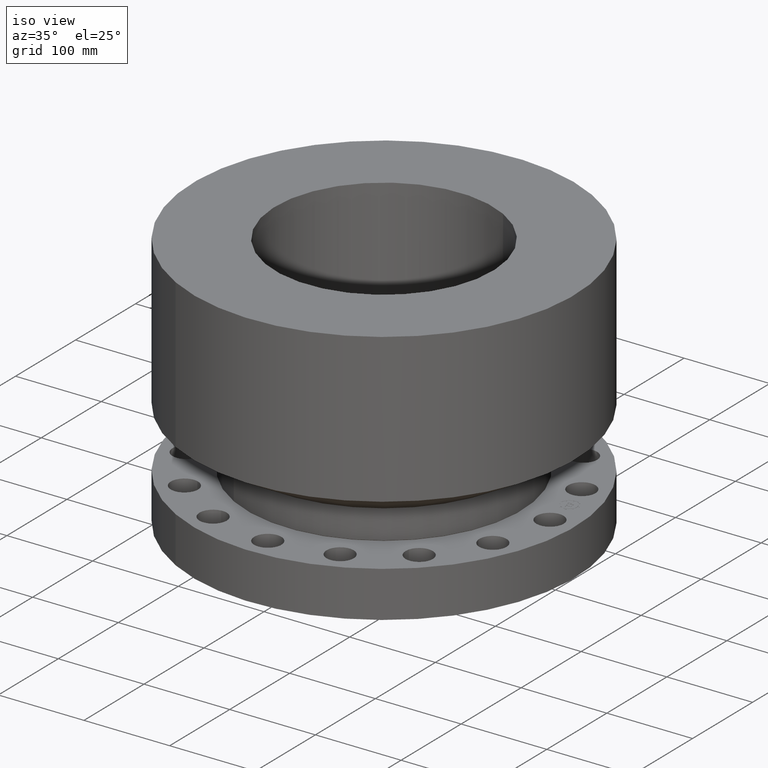
[diagram: clean part render]
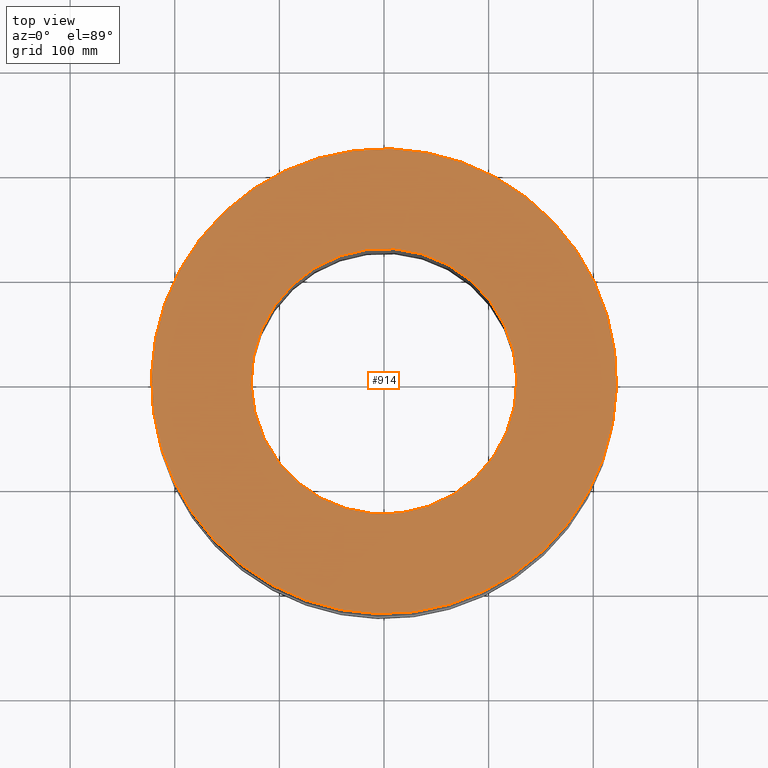
[diagram: tour spotlight — one face highlighted and labeled with its STEP entity id]
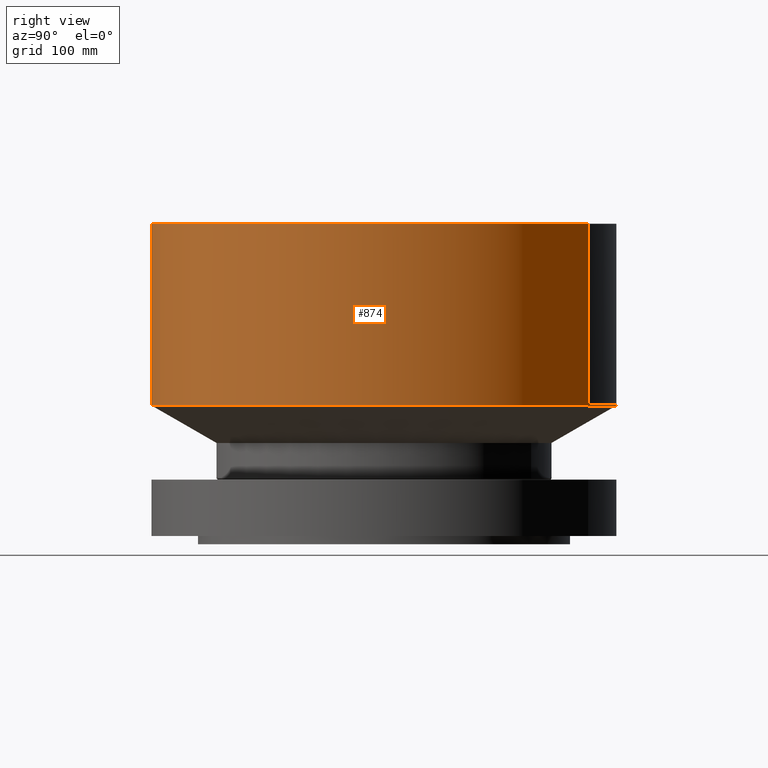
[diagram: tour spotlight — one face highlighted and labeled with its STEP entity id]
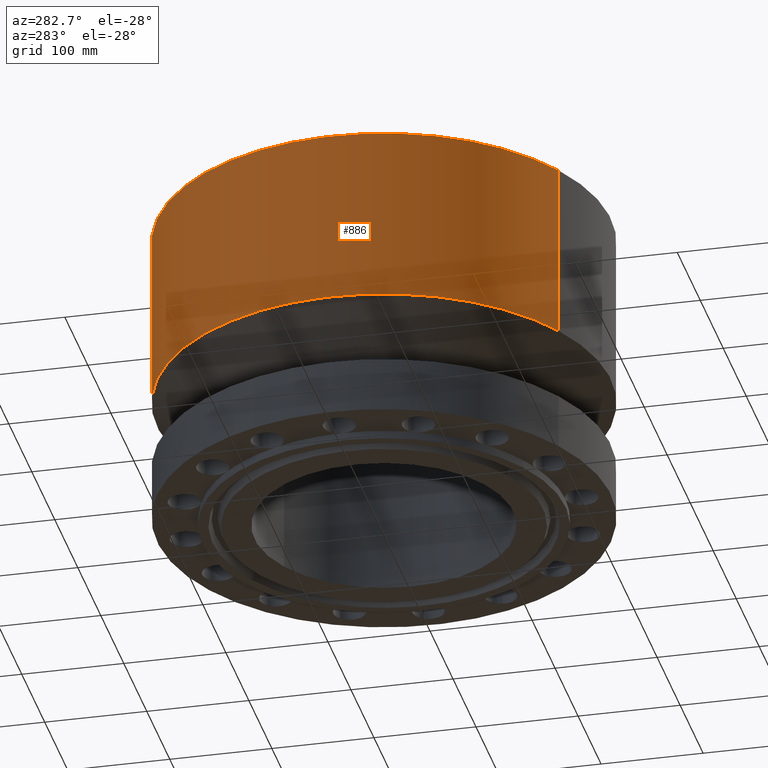
[diagram: tour spotlight — one face highlighted and labeled with its STEP entity id]
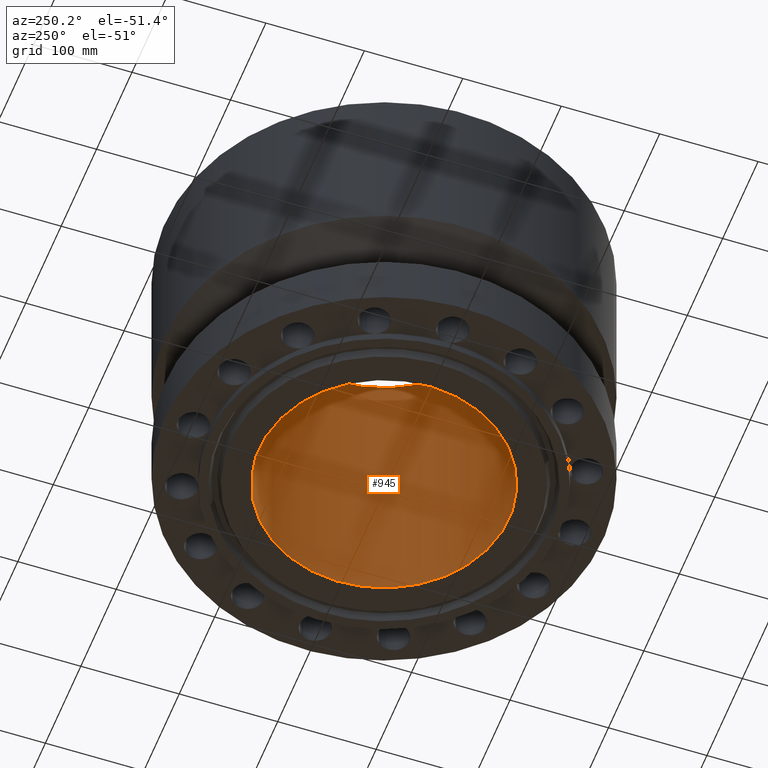
[diagram: tour spotlight — one face highlighted and labeled with its STEP entity id]
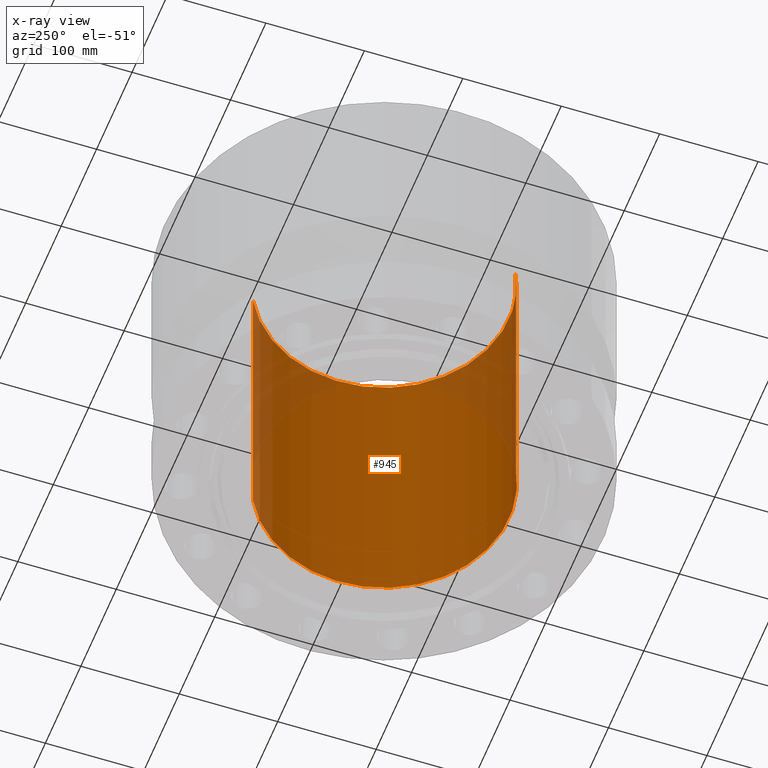
[diagram: x-ray of the same camera — body ghosted, this tour face saturated]
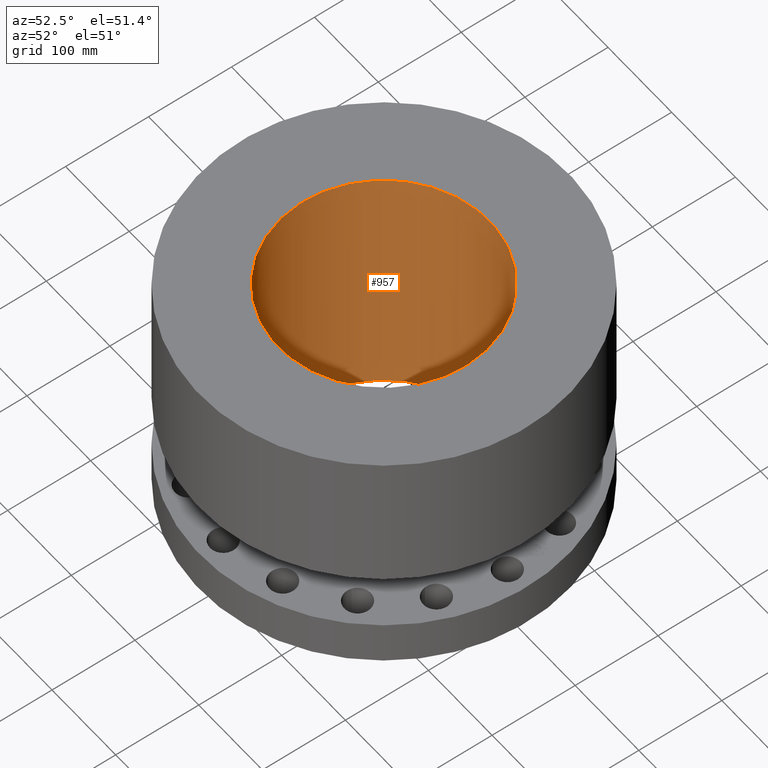
[diagram: tour spotlight — one face highlighted and labeled with its STEP entity id]
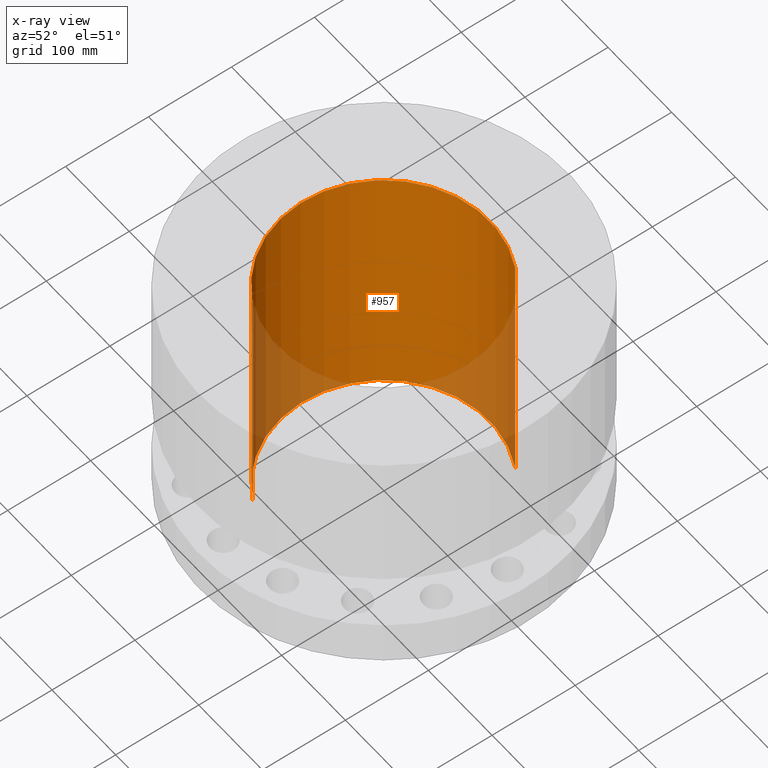
[diagram: x-ray of the same camera — body ghosted, this tour face saturated]
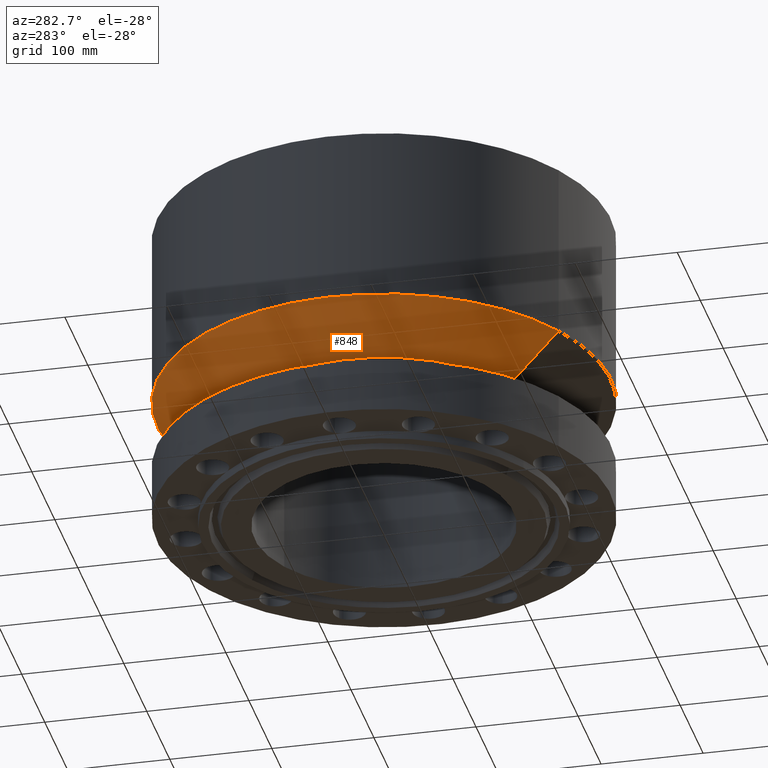
[diagram: tour spotlight — one face highlighted and labeled with its STEP entity id]
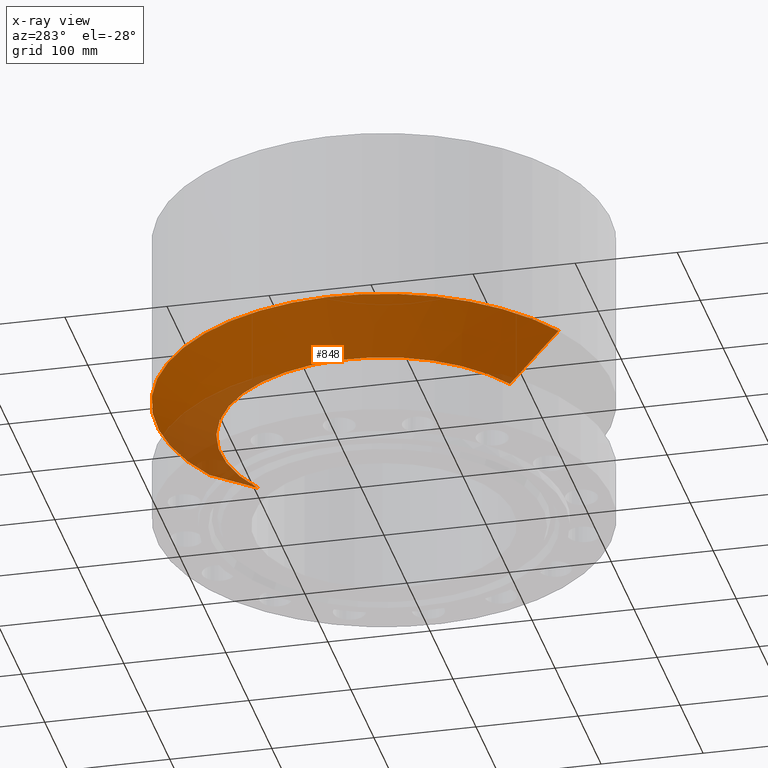
[diagram: x-ray of the same camera — body ghosted, this tour face saturated]
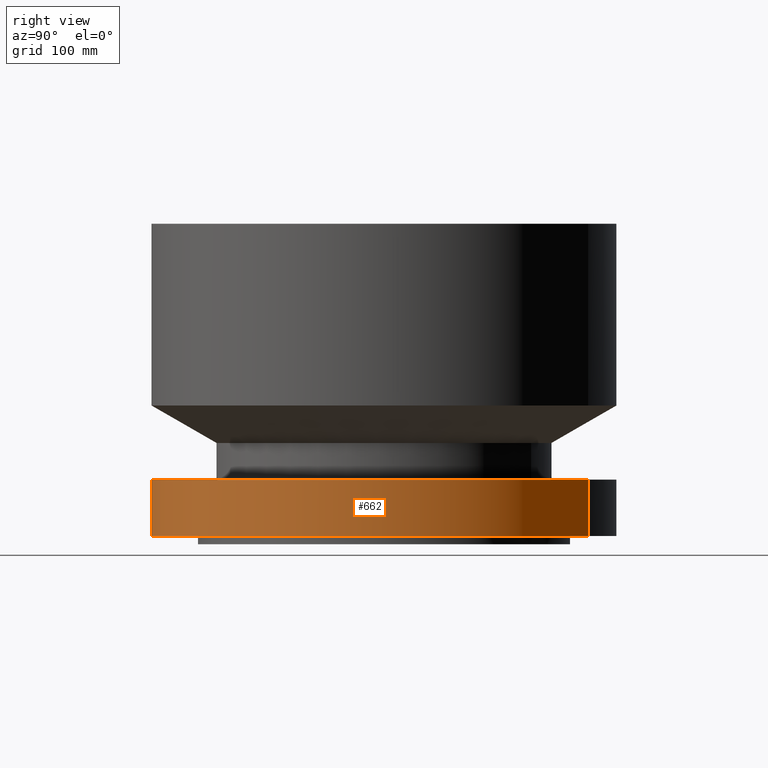
[diagram: tour spotlight — one face highlighted and labeled with its STEP entity id]
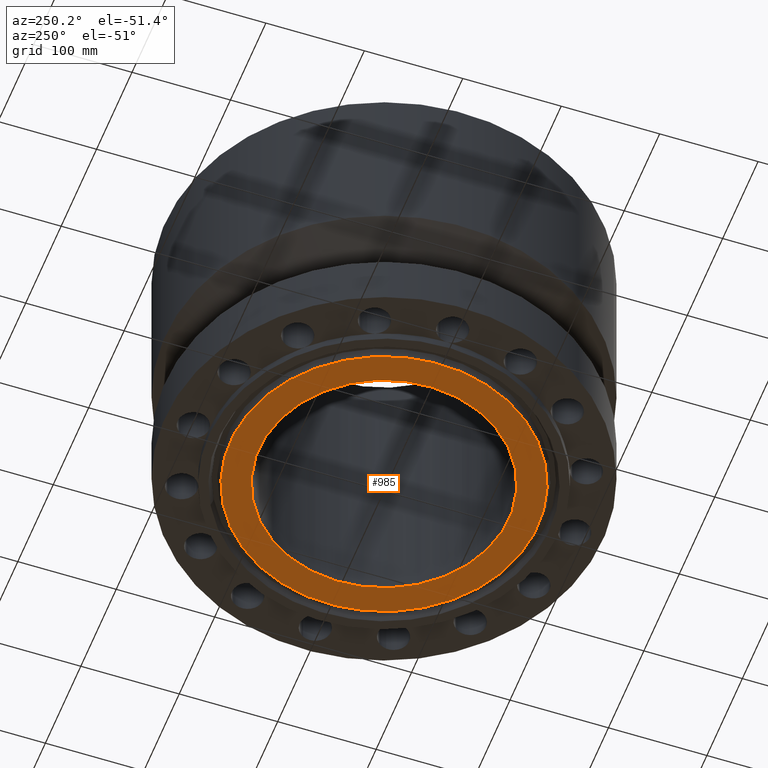
[diagram: tour spotlight — one face highlighted and labeled with its STEP entity id]
A machine part: a face-by-face anatomy tour. The part has 447 B-rep faces; the first image is the clean iso view, then the 8 largest visible faces are spotlighted one at a time (largest first), each with its STEP entity span.

Face 1 — top view, entity #914. In plain terms, the highlighted planar face has unit normal (0, 0, -1).
Definition (entity closure, byte-faithful):
#858=AXIS2_PLACEMENT_3D('Circle Axis2P3D',#856,#857,$) ;
#877=AXIS2_PLACEMENT_3D('Circle Axis2P3D',#875,#876,$) ;
#890=AXIS2_PLACEMENT_3D('Plane Axis2P3D',#887,#888,#889) ;
#898=AXIS2_PLACEMENT_3D('Circle Axis2P3D',#896,#897,$) ;
#907=AXIS2_PLACEMENT_3D('Circle Axis2P3D',#905,#906,$) ;
#853=CARTESIAN_POINT('Vertex',(4.1949734628,7.67884741657,11.75)) ;
#856=CARTESIAN_POINT('Axis2P3D Location',(0.,0.,11.75)) ;
#860=CARTESIAN_POINT('Vertex',(-4.1949734628,-7.67884741657,11.75)) ;
#875=CARTESIAN_POINT('Axis2P3D Location',(0.,0.,11.75)) ;
#887=CARTESIAN_POINT('Axis2P3D Location',(0.,8.75000000003,11.75)) ;
#896=CARTESIAN_POINT('Axis2P3D Location',(0.,0.,11.75)) ;
#900=CARTESIAN_POINT('Vertex',(-2.39712769303,-4.38791280947,11.75)) ;
#902=CARTESIAN_POINT('Vertex',(2.39712769303,4.38791280947,11.75)) ;
#905=CARTESIAN_POINT('Axis2P3D Location',(0.,0.,11.75)) ;
#857=DIRECTION('Axis2P3D Direction',(0.,0.,-0.0393700787402)) ;
#876=DIRECTION('Axis2P3D Direction',(0.,0.,-0.0393700787402)) ;
#888=DIRECTION('Axis2P3D Direction',(0.,0.,-0.0393700787402)) ;
#889=DIRECTION('Axis2P3D XDirection',(0.0393700787402,0.,0.)) ;
#897=DIRECTION('Axis2P3D Direction',(0.,0.,-0.0393700787402)) ;
#906=DIRECTION('Axis2P3D Direction',(0.,0.,-0.0393700787402)) ;
#893=ORIENTED_EDGE('',*,*,#862,.F.) ;
#894=ORIENTED_EDGE('',*,*,#879,.F.) ;
#911=ORIENTED_EDGE('',*,*,#904,.T.) ;
#912=ORIENTED_EDGE('',*,*,#909,.T.) ;
#913=FACE_BOUND('',#910,.T.) ;
#914=ADVANCED_FACE('PartBody',(#895,#913),#891,.F.) ;
#859=CIRCLE('generated circle',#858,8.75000000003) ;
#878=CIRCLE('generated circle',#877,8.75000000003) ;
#899=CIRCLE('generated circle',#898,5.00000000002) ;
#908=CIRCLE('generated circle',#907,5.00000000002) ;
#862=EDGE_CURVE('',#854,#861,#859,.T.) ;
#879=EDGE_CURVE('',#861,#854,#878,.T.) ;
#904=EDGE_CURVE('',#901,#903,#899,.T.) ;
#909=EDGE_CURVE('',#903,#901,#908,.T.) ;
#892=EDGE_LOOP('',(#893,#894)) ;
#910=EDGE_LOOP('',(#911,#912)) ;
#895=FACE_OUTER_BOUND('',#892,.T.) ;
#891=PLANE('',#890) ;
#854=VERTEX_POINT('',#853) ;
#861=VERTEX_POINT('',#860) ;
#901=VERTEX_POINT('',#900) ;
#903=VERTEX_POINT('',#902) ;

Face 2 — right view, entity #874. In plain terms, the highlighted cylindrical surface (partial cylindrical patch) has radius 222.25 mm, axis along (0, 0, -1).
Definition (entity closure, byte-faithful):
#623=AXIS2_PLACEMENT_3D('Cylinder Axis2P3D',#620,#621,#622) ;
#820=AXIS2_PLACEMENT_3D('Circle Axis2P3D',#818,#819,$) ;
#858=AXIS2_PLACEMENT_3D('Circle Axis2P3D',#856,#857,$) ;
#620=CARTESIAN_POINT('Axis2P3D Location',(0.,0.,5.71850000002)) ;
#815=CARTESIAN_POINT('Vertex',(4.1949734628,7.67884741657,4.90873465684)) ;
#818=CARTESIAN_POINT('Axis2P3D Location',(0.,0.,4.90873465684)) ;
#822=CARTESIAN_POINT('Vertex',(-4.1949734628,-7.67884741657,4.90873465684)) ;
#849=CARTESIAN_POINT('Line Origine',(4.1949734628,7.67884741657,8.32936732844)) ;
#853=CARTESIAN_POINT('Vertex',(4.1949734628,7.67884741657,11.75)) ;
#856=CARTESIAN_POINT('Axis2P3D Location',(0.,0.,11.75)) ;
#860=CARTESIAN_POINT('Vertex',(-4.1949734628,-7.67884741657,11.75)) ;
#863=CARTESIAN_POINT('Line Origine',(-4.1949734628,-7.67884741657,8.32936732844)) ;
#621=DIRECTION('Axis2P3D Direction',(0.,0.,-0.0393700787402)) ;
#622=DIRECTION('Axis2P3D XDirection',(-0.0188750212049,-0.0345504945626,0.)) ;
#819=DIRECTION('Axis2P3D Direction',(-0.,0.,0.0393700787402)) ;
#850=DIRECTION('Vector Direction',(0.,0.,-0.0393700787402)) ;
#857=DIRECTION('Axis2P3D Direction',(0.,0.,-0.0393700787402)) ;
#864=DIRECTION('Vector Direction',(0.,0.,-0.0393700787402)) ;
#851=VECTOR('Line Direction',#850,0.0393700787402) ;
#865=VECTOR('Line Direction',#864,0.0393700787402) ;
#869=ORIENTED_EDGE('',*,*,#824,.F.) ;
#870=ORIENTED_EDGE('',*,*,#855,.T.) ;
#871=ORIENTED_EDGE('',*,*,#862,.T.) ;
#872=ORIENTED_EDGE('',*,*,#867,.F.) ;
#874=ADVANCED_FACE('PartBody',(#873),#624,.T.) ;
#821=CIRCLE('generated circle',#820,8.75000000003) ;
#859=CIRCLE('generated circle',#858,8.75000000003) ;
#624=CYLINDRICAL_SURFACE('generated cylinder',#623,8.75000000003) ;
#824=EDGE_CURVE('',#816,#823,#821,.F.) ;
#855=EDGE_CURVE('',#816,#854,#852,.F.) ;
#862=EDGE_CURVE('',#854,#861,#859,.T.) ;
#867=EDGE_CURVE('',#823,#861,#866,.F.) ;
#868=EDGE_LOOP('',(#869,#870,#871,#872)) ;
#873=FACE_OUTER_BOUND('',#868,.T.) ;
#852=LINE('Line',#849,#851) ;
#866=LINE('Line',#863,#865) ;
#816=VERTEX_POINT('',#815) ;
#823=VERTEX_POINT('',#822) ;
#854=VERTEX_POINT('',#853) ;
#861=VERTEX_POINT('',#860) ;

Face 3 — auxiliary view, entity #886. In plain terms, the highlighted cylindrical surface (partial cylindrical patch) has radius 222.25 mm, axis along (0, 0, -1).
Definition (entity closure, byte-faithful):
#623=AXIS2_PLACEMENT_3D('Cylinder Axis2P3D',#620,#621,#622) ;
#839=AXIS2_PLACEMENT_3D('Circle Axis2P3D',#837,#838,$) ;
#877=AXIS2_PLACEMENT_3D('Circle Axis2P3D',#875,#876,$) ;
#620=CARTESIAN_POINT('Axis2P3D Location',(0.,0.,5.71850000002)) ;
#815=CARTESIAN_POINT('Vertex',(4.1949734628,7.67884741657,4.90873465684)) ;
#822=CARTESIAN_POINT('Vertex',(-4.1949734628,-7.67884741657,4.90873465684)) ;
#837=CARTESIAN_POINT('Axis2P3D Location',(0.,0.,4.90873465684)) ;
#849=CARTESIAN_POINT('Line Origine',(4.1949734628,7.67884741657,8.32936732844)) ;
#853=CARTESIAN_POINT('Vertex',(4.1949734628,7.67884741657,11.75)) ;
#860=CARTESIAN_POINT('Vertex',(-4.1949734628,-7.67884741657,11.75)) ;
#863=CARTESIAN_POINT('Line Origine',(-4.1949734628,-7.67884741657,8.32936732844)) ;
#875=CARTESIAN_POINT('Axis2P3D Location',(0.,0.,11.75)) ;
#621=DIRECTION('Axis2P3D Direction',(0.,0.,-0.0393700787402)) ;
#622=DIRECTION('Axis2P3D XDirection',(-0.0188750212049,-0.0345504945626,0.)) ;
#838=DIRECTION('Axis2P3D Direction',(-0.,0.,0.0393700787402)) ;
#850=DIRECTION('Vector Direction',(0.,0.,-0.0393700787402)) ;
#864=DIRECTION('Vector Direction',(0.,0.,-0.0393700787402)) ;
#876=DIRECTION('Axis2P3D Direction',(0.,0.,-0.0393700787402)) ;
#851=VECTOR('Line Direction',#850,0.0393700787402) ;
#865=VECTOR('Line Direction',#864,0.0393700787402) ;
#881=ORIENTED_EDGE('',*,*,#841,.F.) ;
#882=ORIENTED_EDGE('',*,*,#867,.T.) ;
#883=ORIENTED_EDGE('',*,*,#879,.T.) ;
#884=ORIENTED_EDGE('',*,*,#855,.F.) ;
#886=ADVANCED_FACE('PartBody',(#885),#624,.T.) ;
#840=CIRCLE('generated circle',#839,8.75000000003) ;
#878=CIRCLE('generated circle',#877,8.75000000003) ;
#624=CYLINDRICAL_SURFACE('generated cylinder',#623,8.75000000003) ;
#841=EDGE_CURVE('',#823,#816,#840,.F.) ;
#855=EDGE_CURVE('',#816,#854,#852,.F.) ;
#867=EDGE_CURVE('',#823,#861,#866,.F.) ;
#879=EDGE_CURVE('',#861,#854,#878,.T.) ;
#880=EDGE_LOOP('',(#881,#882,#883,#884)) ;
#885=FACE_OUTER_BOUND('',#880,.T.) ;
#852=LINE('Line',#849,#851) ;
#866=LINE('Line',#863,#865) ;
#816=VERTEX_POINT('',#815) ;
#823=VERTEX_POINT('',#822) ;
#854=VERTEX_POINT('',#853) ;
#861=VERTEX_POINT('',#860) ;

Face 4 — auxiliary view, entity #945. An x-ray twin of the same camera follows (body ghosted, this face saturated) — the face is partly hidden behind the body. In plain terms, the highlighted cylindrical surface (partial cylindrical patch) has radius 127 mm, axis along (0, 0, -1).
Definition (entity closure, byte-faithful):
#907=AXIS2_PLACEMENT_3D('Circle Axis2P3D',#905,#906,$) ;
#918=AXIS2_PLACEMENT_3D('Cylinder Axis2P3D',#915,#916,#917) ;
#929=AXIS2_PLACEMENT_3D('Circle Axis2P3D',#927,#928,$) ;
#900=CARTESIAN_POINT('Vertex',(-2.39712769303,-4.38791280947,11.75)) ;
#902=CARTESIAN_POINT('Vertex',(2.39712769303,4.38791280947,11.75)) ;
#905=CARTESIAN_POINT('Axis2P3D Location',(0.,0.,11.75)) ;
#915=CARTESIAN_POINT('Axis2P3D Location',(0.,0.,5.71850000002)) ;
#920=CARTESIAN_POINT('Line Origine',(2.39712769303,4.38791280947,5.71850000002)) ;
#924=CARTESIAN_POINT('Vertex',(2.39712769303,4.38791280947,-0.313000000001)) ;
#927=CARTESIAN_POINT('Axis2P3D Location',(0.,0.,-0.313000000001)) ;
#931=CARTESIAN_POINT('Vertex',(-2.39712769303,-4.38791280947,-0.313000000001)) ;
#934=CARTESIAN_POINT('Line Origine',(-2.39712769303,-4.38791280947,5.71850000002)) ;
#906=DIRECTION('Axis2P3D Direction',(0.,0.,-0.0393700787402)) ;
#916=DIRECTION('Axis2P3D Direction',(0.,0.,-0.0393700787402)) ;
#917=DIRECTION('Axis2P3D XDirection',(-0.0188750212049,-0.0345504945626,0.)) ;
#921=DIRECTION('Vector Direction',(0.,0.,-0.0393700787402)) ;
#928=DIRECTION('Axis2P3D Direction',(0.,0.,-0.0393700787402)) ;
#935=DIRECTION('Vector Direction',(0.,0.,-0.0393700787402)) ;
#922=VECTOR('Line Direction',#921,0.0393700787402) ;
#936=VECTOR('Line Direction',#935,0.0393700787402) ;
#940=ORIENTED_EDGE('',*,*,#909,.F.) ;
#941=ORIENTED_EDGE('',*,*,#926,.T.) ;
#942=ORIENTED_EDGE('',*,*,#933,.T.) ;
#943=ORIENTED_EDGE('',*,*,#938,.F.) ;
#945=ADVANCED_FACE('PartBody',(#944),#919,.F.) ;
#908=CIRCLE('generated circle',#907,5.00000000002) ;
#930=CIRCLE('generated circle',#929,5.00000000002) ;
#919=CYLINDRICAL_SURFACE('generated cylinder',#918,5.00000000002) ;
#909=EDGE_CURVE('',#903,#901,#908,.T.) ;
#926=EDGE_CURVE('',#903,#925,#923,.T.) ;
#933=EDGE_CURVE('',#925,#932,#930,.T.) ;
#938=EDGE_CURVE('',#901,#932,#937,.T.) ;
#939=EDGE_LOOP('',(#940,#941,#942,#943)) ;
#944=FACE_OUTER_BOUND('',#939,.T.) ;
#923=LINE('Line',#920,#922) ;
#937=LINE('Line',#934,#936) ;
#901=VERTEX_POINT('',#900) ;
#903=VERTEX_POINT('',#902) ;
#925=VERTEX_POINT('',#924) ;
#932=VERTEX_POINT('',#931) ;

Face 5 — auxiliary view, entity #957. An x-ray twin of the same camera follows (body ghosted, this face saturated) — the face is partly hidden behind the body. In plain terms, the highlighted cylindrical surface (partial cylindrical patch) has radius 127 mm, axis along (0, 0, -1).
Definition (entity closure, byte-faithful):
#898=AXIS2_PLACEMENT_3D('Circle Axis2P3D',#896,#897,$) ;
#918=AXIS2_PLACEMENT_3D('Cylinder Axis2P3D',#915,#916,#917) ;
#948=AXIS2_PLACEMENT_3D('Circle Axis2P3D',#946,#947,$) ;
#896=CARTESIAN_POINT('Axis2P3D Location',(0.,0.,11.75)) ;
#900=CARTESIAN_POINT('Vertex',(-2.39712769303,-4.38791280947,11.75)) ;
#902=CARTESIAN_POINT('Vertex',(2.39712769303,4.38791280947,11.75)) ;
#915=CARTESIAN_POINT('Axis2P3D Location',(0.,0.,5.71850000002)) ;
#920=CARTESIAN_POINT('Line Origine',(2.39712769303,4.38791280947,5.71850000002)) ;
#924=CARTESIAN_POINT('Vertex',(2.39712769303,4.38791280947,-0.313000000001)) ;
#931=CARTESIAN_POINT('Vertex',(-2.39712769303,-4.38791280947,-0.313000000001)) ;
#934=CARTESIAN_POINT('Line Origine',(-2.39712769303,-4.38791280947,5.71850000002)) ;
#946=CARTESIAN_POINT('Axis2P3D Location',(0.,0.,-0.313000000001)) ;
#897=DIRECTION('Axis2P3D Direction',(0.,0.,-0.0393700787402)) ;
#916=DIRECTION('Axis2P3D Direction',(0.,0.,-0.0393700787402)) ;
#917=DIRECTION('Axis2P3D XDirection',(-0.0188750212049,-0.0345504945626,0.)) ;
#921=DIRECTION('Vector Direction',(0.,0.,-0.0393700787402)) ;
#935=DIRECTION('Vector Direction',(0.,0.,-0.0393700787402)) ;
#947=DIRECTION('Axis2P3D Direction',(0.,0.,-0.0393700787402)) ;
#922=VECTOR('Line Direction',#921,0.0393700787402) ;
#936=VECTOR('Line Direction',#935,0.0393700787402) ;
#952=ORIENTED_EDGE('',*,*,#904,.F.) ;
#953=ORIENTED_EDGE('',*,*,#938,.T.) ;
#954=ORIENTED_EDGE('',*,*,#950,.T.) ;
#955=ORIENTED_EDGE('',*,*,#926,.F.) ;
#957=ADVANCED_FACE('PartBody',(#956),#919,.F.) ;
#899=CIRCLE('generated circle',#898,5.00000000002) ;
#949=CIRCLE('generated circle',#948,5.00000000002) ;
#919=CYLINDRICAL_SURFACE('generated cylinder',#918,5.00000000002) ;
#904=EDGE_CURVE('',#901,#903,#899,.T.) ;
#926=EDGE_CURVE('',#903,#925,#923,.T.) ;
#938=EDGE_CURVE('',#901,#932,#937,.T.) ;
#950=EDGE_CURVE('',#932,#925,#949,.T.) ;
#951=EDGE_LOOP('',(#952,#953,#954,#955)) ;
#956=FACE_OUTER_BOUND('',#951,.T.) ;
#923=LINE('Line',#920,#922) ;
#937=LINE('Line',#934,#936) ;
#901=VERTEX_POINT('',#900) ;
#903=VERTEX_POINT('',#902) ;
#925=VERTEX_POINT('',#924) ;
#932=VERTEX_POINT('',#931) ;

Face 6 — auxiliary view, entity #848. An x-ray twin of the same camera follows (body ghosted, this face saturated) — the face is partly hidden behind the body. In plain terms, the highlighted conical surface has half-angle 60 deg.
Definition (entity closure, byte-faithful):
#796=AXIS2_PLACEMENT_3D('Circle Axis2P3D',#794,#795,$) ;
#809=AXIS2_PLACEMENT_3D('Cone Axis2P3D',#806,#807,#808) ;
#839=AXIS2_PLACEMENT_3D('Circle Axis2P3D',#837,#838,$) ;
#772=CARTESIAN_POINT('Vertex',(3.0251751486,5.53754596555,3.50000000001)) ;
#779=CARTESIAN_POINT('Vertex',(-3.0251751486,-5.53754596555,3.50000000001)) ;
#794=CARTESIAN_POINT('Axis2P3D Location',(0.,0.,3.50000000001)) ;
#806=CARTESIAN_POINT('Axis2P3D Location',(0.,0.,3.50000000001)) ;
#811=CARTESIAN_POINT('Line Origine',(3.6100743057,6.60819669106,4.20436732843)) ;
#815=CARTESIAN_POINT('Vertex',(4.1949734628,7.67884741657,4.90873465684)) ;
#822=CARTESIAN_POINT('Vertex',(-4.1949734628,-7.67884741657,4.90873465684)) ;
#825=CARTESIAN_POINT('Line Origine',(-3.6100743057,-6.60819669106,4.20436732843)) ;
#837=CARTESIAN_POINT('Axis2P3D Location',(0.,0.,4.90873465684)) ;
#795=DIRECTION('Axis2P3D Direction',(0.,0.,-0.0393700787402)) ;
#807=DIRECTION('Axis2P3D Direction',(-0.,-0.,0.0393700787402)) ;
#808=DIRECTION('Axis2P3D XDirection',(0.0188750212049,0.0345504945626,0.)) ;
#812=DIRECTION('Vector Direction',(0.0163462478604,0.0299216060045,0.0196850393701)) ;
#826=DIRECTION('Vector Direction',(-0.0163462478604,-0.0299216060045,0.0196850393701)) ;
#838=DIRECTION('Axis2P3D Direction',(-0.,0.,0.0393700787402)) ;
#813=VECTOR('Line Direction',#812,0.0393700787402) ;
#827=VECTOR('Line Direction',#826,0.0393700787402) ;
#843=ORIENTED_EDGE('',*,*,#798,.F.) ;
#844=ORIENTED_EDGE('',*,*,#829,.T.) ;
#845=ORIENTED_EDGE('',*,*,#841,.T.) ;
#846=ORIENTED_EDGE('',*,*,#817,.F.) ;
#848=ADVANCED_FACE('PartBody',(#847),#810,.T.) ;
#797=CIRCLE('generated circle',#796,6.31000000003) ;
#840=CIRCLE('generated circle',#839,8.75000000003) ;
#810=CONICAL_SURFACE('Cone',#809,6.31000000003,1.0471975512) ;
#798=EDGE_CURVE('',#780,#773,#797,.T.) ;
#817=EDGE_CURVE('',#773,#816,#814,.T.) ;
#829=EDGE_CURVE('',#780,#823,#828,.T.) ;
#841=EDGE_CURVE('',#823,#816,#840,.F.) ;
#842=EDGE_LOOP('',(#843,#844,#845,#846)) ;
#847=FACE_OUTER_BOUND('',#842,.T.) ;
#814=LINE('Line',#811,#813) ;
#828=LINE('Line',#825,#827) ;
#773=VERTEX_POINT('',#772) ;
#780=VERTEX_POINT('',#779) ;
#816=VERTEX_POINT('',#815) ;
#823=VERTEX_POINT('',#822) ;

Face 7 — right view, entity #662. In plain terms, the highlighted cylindrical surface (partial cylindrical patch) has radius 222.25 mm, axis along (0, 0, -1).
Definition (entity closure, byte-faithful):
#91=AXIS2_PLACEMENT_3D('Circle Axis2P3D',#89,#90,$) ;
#623=AXIS2_PLACEMENT_3D('Cylinder Axis2P3D',#620,#621,#622) ;
#653=AXIS2_PLACEMENT_3D('Circle Axis2P3D',#651,#652,$) ;
#84=CARTESIAN_POINT('Vertex',(-4.1949734628,-7.67884741657,1.1189649382E-015)) ;
#86=CARTESIAN_POINT('Vertex',(4.1949734628,7.67884741657,1.1189649382E-015)) ;
#89=CARTESIAN_POINT('Axis2P3D Location',(0.,0.,0.)) ;
#620=CARTESIAN_POINT('Axis2P3D Location',(0.,0.,5.71850000002)) ;
#625=CARTESIAN_POINT('Line Origine',(-4.1949734628,-7.67884741657,8.32936732844)) ;
#629=CARTESIAN_POINT('Vertex',(-4.1949734628,-7.67884741657,2.12000000001)) ;
#636=CARTESIAN_POINT('Vertex',(4.1949734628,7.67884741657,2.12000000001)) ;
#639=CARTESIAN_POINT('Line Origine',(4.1949734628,7.67884741657,8.32936732844)) ;
#651=CARTESIAN_POINT('Axis2P3D Location',(0.,0.,2.12000000001)) ;
#90=DIRECTION('Axis2P3D Direction',(0.,0.,-0.0393700787402)) ;
#621=DIRECTION('Axis2P3D Direction',(0.,0.,-0.0393700787402)) ;
#622=DIRECTION('Axis2P3D XDirection',(-0.0188750212049,-0.0345504945626,0.)) ;
#626=DIRECTION('Vector Direction',(0.,0.,-0.0393700787402)) ;
#640=DIRECTION('Vector Direction',(0.,0.,-0.0393700787402)) ;
#652=DIRECTION('Axis2P3D Direction',(0.,0.,-0.0393700787402)) ;
#627=VECTOR('Line Direction',#626,0.0393700787402) ;
#641=VECTOR('Line Direction',#640,0.0393700787402) ;
#657=ORIENTED_EDGE('',*,*,#93,.F.) ;
#658=ORIENTED_EDGE('',*,*,#643,.T.) ;
#659=ORIENTED_EDGE('',*,*,#655,.T.) ;
#660=ORIENTED_EDGE('',*,*,#631,.F.) ;
#662=ADVANCED_FACE('PartBody',(#661),#624,.T.) ;
#92=CIRCLE('generated circle',#91,8.75000000003) ;
#654=CIRCLE('generated circle',#653,8.75000000003) ;
#624=CYLINDRICAL_SURFACE('generated cylinder',#623,8.75000000003) ;
#93=EDGE_CURVE('',#87,#85,#92,.T.) ;
#631=EDGE_CURVE('',#85,#630,#628,.F.) ;
#643=EDGE_CURVE('',#87,#637,#642,.F.) ;
#655=EDGE_CURVE('',#637,#630,#654,.T.) ;
#656=EDGE_LOOP('',(#657,#658,#659,#660)) ;
#661=FACE_OUTER_BOUND('',#656,.T.) ;
#628=LINE('Line',#625,#627) ;
#642=LINE('Line',#639,#641) ;
#85=VERTEX_POINT('',#84) ;
#87=VERTEX_POINT('',#86) ;
#630=VERTEX_POINT('',#629) ;
#637=VERTEX_POINT('',#636) ;

Face 8 — auxiliary view, entity #985. In plain terms, the highlighted planar face has unit normal (0, 0, -1).
Definition (entity closure, byte-faithful):
#929=AXIS2_PLACEMENT_3D('Circle Axis2P3D',#927,#928,$) ;
#948=AXIS2_PLACEMENT_3D('Circle Axis2P3D',#946,#947,$) ;
#961=AXIS2_PLACEMENT_3D('Plane Axis2P3D',#958,#959,#960) ;
#965=AXIS2_PLACEMENT_3D('Circle Axis2P3D',#963,#964,$) ;
#974=AXIS2_PLACEMENT_3D('Circle Axis2P3D',#972,#973,$) ;
#924=CARTESIAN_POINT('Vertex',(2.39712769303,4.38791280947,-0.313000000001)) ;
#927=CARTESIAN_POINT('Axis2P3D Location',(0.,0.,-0.313000000001)) ;
#931=CARTESIAN_POINT('Vertex',(-2.39712769303,-4.38791280947,-0.313000000001)) ;
#946=CARTESIAN_POINT('Axis2P3D Location',(0.,0.,-0.313000000001)) ;
#958=CARTESIAN_POINT('Axis2P3D Location',(0.,5.00000000002,-0.313000000001)) ;
#963=CARTESIAN_POINT('Axis2P3D Location',(0.,0.,-0.313000000001)) ;
#967=CARTESIAN_POINT('Vertex',(-2.94391251981,-5.38879572131,-0.313000000001)) ;
#969=CARTESIAN_POINT('Vertex',(2.94391251981,5.38879572131,-0.313000000001)) ;
#972=CARTESIAN_POINT('Axis2P3D Location',(0.,0.,-0.313000000001)) ;
#928=DIRECTION('Axis2P3D Direction',(0.,0.,-0.0393700787402)) ;
#947=DIRECTION('Axis2P3D Direction',(0.,0.,-0.0393700787402)) ;
#959=DIRECTION('Axis2P3D Direction',(0.,0.,-0.0393700787402)) ;
#960=DIRECTION('Axis2P3D XDirection',(0.0393700787402,0.,0.)) ;
#964=DIRECTION('Axis2P3D Direction',(0.,0.,-0.0393700787402)) ;
#973=DIRECTION('Axis2P3D Direction',(0.,0.,-0.0393700787402)) ;
#978=ORIENTED_EDGE('',*,*,#971,.T.) ;
#979=ORIENTED_EDGE('',*,*,#976,.T.) ;
#982=ORIENTED_EDGE('',*,*,#933,.F.) ;
#983=ORIENTED_EDGE('',*,*,#950,.F.) ;
#984=FACE_BOUND('',#981,.T.) ;
#985=ADVANCED_FACE('PartBody',(#980,#984),#962,.T.) ;
#930=CIRCLE('generated circle',#929,5.00000000002) ;
#949=CIRCLE('generated circle',#948,5.00000000002) ;
#966=CIRCLE('generated circle',#965,6.14050000002) ;
#975=CIRCLE('generated circle',#974,6.14050000002) ;
#933=EDGE_CURVE('',#925,#932,#930,.T.) ;
#950=EDGE_CURVE('',#932,#925,#949,.T.) ;
#971=EDGE_CURVE('',#968,#970,#966,.T.) ;
#976=EDGE_CURVE('',#970,#968,#975,.T.) ;
#977=EDGE_LOOP('',(#978,#979)) ;
#981=EDGE_LOOP('',(#982,#983)) ;
#980=FACE_OUTER_BOUND('',#977,.T.) ;
#962=PLANE('',#961) ;
#925=VERTEX_POINT('',#924) ;
#932=VERTEX_POINT('',#931) ;
#968=VERTEX_POINT('',#967) ;
#970=VERTEX_POINT('',#969) ;